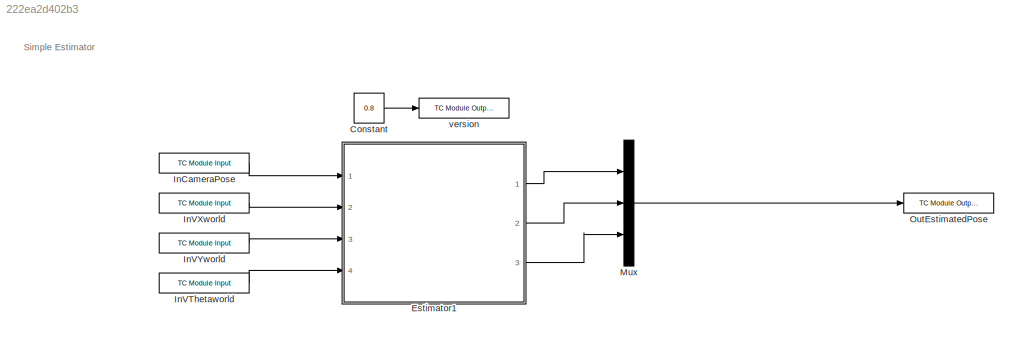
MODEL slx_222ea2d402b3
KIND model
CONFIG AbsTol = auto
CONFIG EnableMultiTasking = off
CONFIG FixedStep = 0.01
CONFIG MaxStep = auto
CONFIG MinStep = auto
CONFIG RelTol = 1e-3
CONFIG SampleTimeConstraint = Unconstrained
CONFIG SolverName = ode1
CONFIG StartTime = 0.0
CONFIG StopTime = inf
BLOCK [Constant] Constant
  Value = 0.8
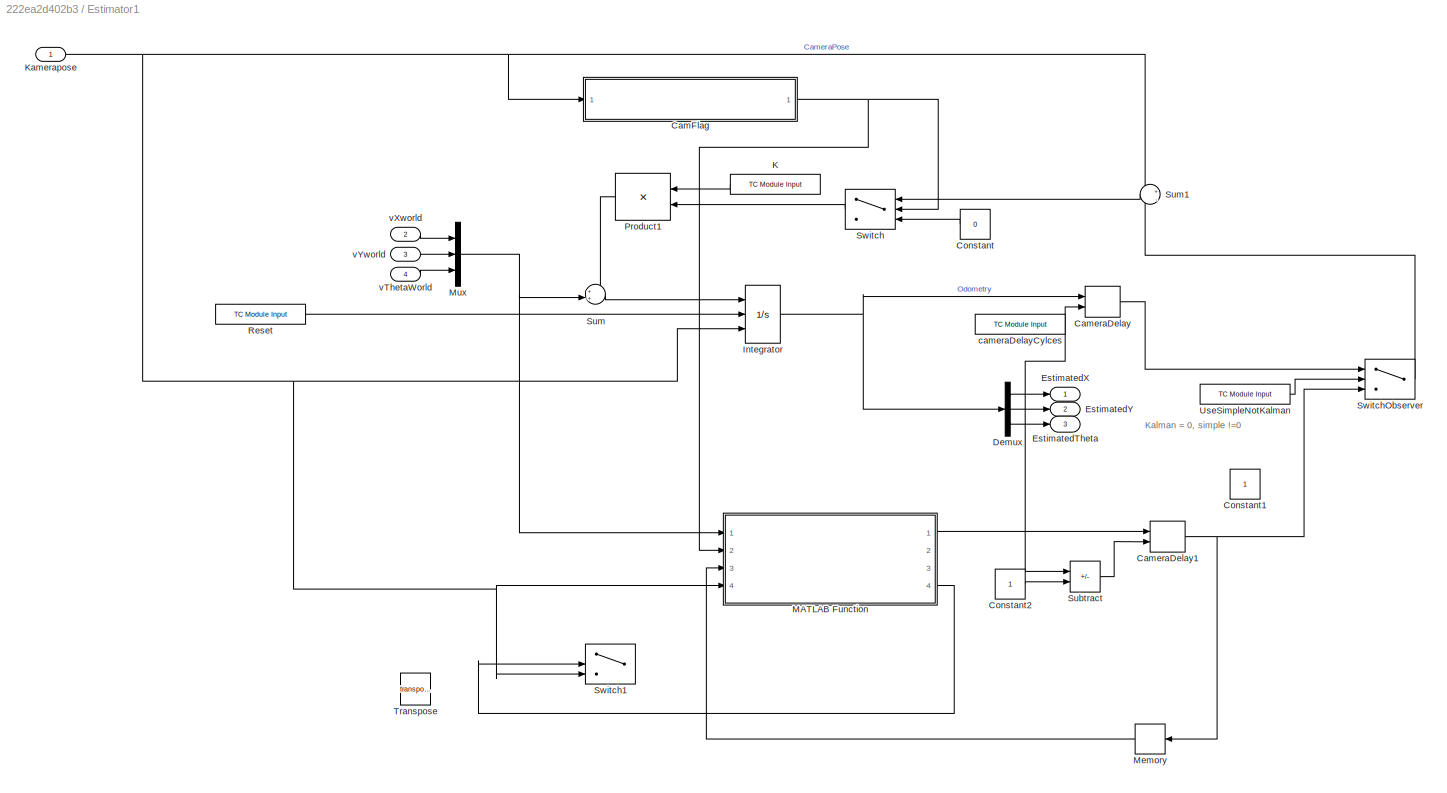
BLOCK [SubSystem] Estimator1
  Ports = [4, 3]
  RequestExecContextInheritance = off
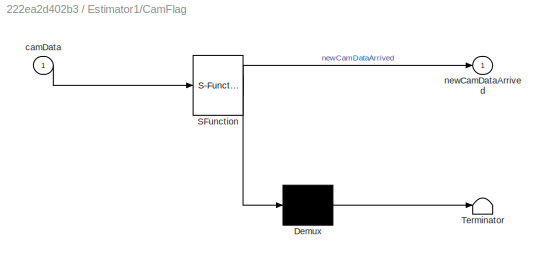
BLOCK [SubSystem] Estimator1/CamFlag
  ErrorFcn = Stateflow.Translate.translate
  NameLocation = top
  PermitHierarchicalResolution = ExplicitOnly
  Ports = [1, 1]
  RequestExecContextInheritance = off
  SFBlockType = MATLAB Function
  SystemSampleTime = 0.01
  TreatAsAtomicUnit = on
BLOCK [Demux] Estimator1/CamFlag/ Demux 
  Outputs = 1
  Ports = [1, 1]
BLOCK [S-Function] Estimator1/CamFlag/ SFunction 
  EnableBusSupport = on
  FunctionName = sf_sfun
  PortCounts = [1 2]
  Ports = [1, 2]
  SFcnIsStateOwnerBlock = off
  SFunctionDeploymentMode = off
  Tag = Stateflow S-Function 4
BLOCK [Terminator] Estimator1/CamFlag/ Terminator 
BLOCK [Inport] Estimator1/CamFlag/camData
BLOCK [Outport] Estimator1/CamFlag/newCamDataArrived
BLOCK [Delay] Estimator1/CameraDelay
  DelayLength = 14
  DelayLengthSource = Input port
  InputPortMap = u0,p1
  Ports = [2, 1]
BLOCK [Delay] Estimator1/CameraDelay1
  DelayLength = 14
  DelayLengthSource = Input port
  InputPortMap = u0,p1
  Ports = [2, 1]
BLOCK [Constant] Estimator1/Constant
  NameLocation = top
  Value = 0
BLOCK [Constant] Estimator1/Constant1
BLOCK [Constant] Estimator1/Constant2
BLOCK [Demux] Estimator1/Demux
  Outputs = 3
  Ports = [1, 3]
BLOCK [Outport] Estimator1/EstimatedTheta
  NameLocation = right
  Port = 3
BLOCK [Outport] Estimator1/EstimatedX
  NameLocation = right
BLOCK [Outport] Estimator1/EstimatedY
  NameLocation = right
  Port = 2
BLOCK [Integrator] Estimator1/Integrator
  ExternalReset = rising
  InitialConditionSource = external
  Ports = [3, 1]
BLOCK [Reference] Estimator1/K  REF=TcTargetLib/TC Module Input
  NameLocation = right
  Ports = [0, 1]
  SourceBlock = TcTargetLib/TC Module Input
  SourceProductName = Beckhoff TwinCAT Target
  SourceType = TC Module Input
BLOCK [Inport] Estimator1/Kamerapose
  PortDimensions = 3
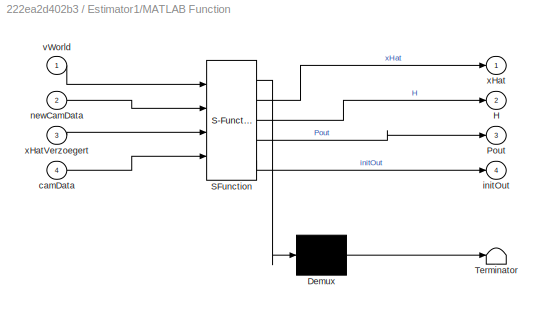
BLOCK [SubSystem] Estimator1/MATLAB Function
  ErrorFcn = Stateflow.Translate.translate
  PermitHierarchicalResolution = ExplicitOnly
  Ports = [4, 4]
  RequestExecContextInheritance = off
  SFBlockType = MATLAB Function
  TreatAsAtomicUnit = on
BLOCK [Demux] Estimator1/MATLAB Function/ Demux 
  Outputs = 1
  Ports = [1, 1]
BLOCK [S-Function] Estimator1/MATLAB Function/ SFunction 
  EnableBusSupport = on
  FunctionName = sf_sfun
  PortCounts = [4 5]
  Ports = [4, 5]
  SFcnIsStateOwnerBlock = off
  SFunctionDeploymentMode = off
  Tag = Stateflow S-Function 2
BLOCK [Terminator] Estimator1/MATLAB Function/ Terminator 
BLOCK [Outport] Estimator1/MATLAB Function/H
  Port = 2
BLOCK [Outport] Estimator1/MATLAB Function/Pout
  Port = 3
BLOCK [Inport] Estimator1/MATLAB Function/camData
  Port = 4
BLOCK [Outport] Estimator1/MATLAB Function/initOut
  Port = 4
BLOCK [Inport] Estimator1/MATLAB Function/newCamData
  Port = 2
BLOCK [Inport] Estimator1/MATLAB Function/vWorld
BLOCK [Outport] Estimator1/MATLAB Function/xHat
BLOCK [Inport] Estimator1/MATLAB Function/xHatVerzoegert
  Port = 3
BLOCK [Memory] Estimator1/Memory
BLOCK [Mux] Estimator1/Mux
  DisplayOption = bar
  Inputs = 3
  Ports = [3, 1]
BLOCK [Product] Estimator1/Product1
  Multiplication = Matrix(*)
  NameLocation = top
  Ports = [2, 1]
BLOCK [Reference] Estimator1/Reset  REF=TcTargetLib/TC Module Input
  NameLocation = left
  Ports = [0, 1]
  SourceBlock = TcTargetLib/TC Module Input
  SourceProductName = Beckhoff TwinCAT Target
  SourceType = TC Module Input
BLOCK [Sum] Estimator1/Subtract
  IconShape = rectangular
  Inputs = +-
  Ports = [2, 1]
BLOCK [Sum] Estimator1/Sum
  Inputs = ++|
  Ports = [2, 1]
BLOCK [Sum] Estimator1/Sum1
  Inputs = +|-
  NameLocation = top
  Ports = [2, 1]
BLOCK [Switch] Estimator1/Switch
  Criteria = u2 ~= 0
  InputSameDT = off
  NameLocation = top
  SaturateOnIntegerOverflow = off
  Threshold = 0.5
BLOCK [Switch] Estimator1/Switch1
  Criteria = u2 > Threshold
  InputSameDT = off
  SaturateOnIntegerOverflow = off
BLOCK [Switch] Estimator1/SwitchObserver
  Criteria = u2 ~= 0
  InputSameDT = off
  SaturateOnIntegerOverflow = off
BLOCK [Math] Estimator1/Transpose
  Operator = transpose
  Ports = [1, 1]
BLOCK [Reference] Estimator1/UseSimpleNotKalman  REF=TcTargetLib/TC Module Input
  Ports = [0, 1]
  SourceBlock = TcTargetLib/TC Module Input
  SourceProductName = Beckhoff TwinCAT Target
  SourceType = TC Module Input
BLOCK [Reference] Estimator1/cameraDelayCylces  REF=TcTargetLib/TC Module Input
  NameLocation = left
  Ports = [0, 1]
  SourceBlock = TcTargetLib/TC Module Input
  SourceProductName = Beckhoff TwinCAT Target
  SourceType = TC Module Input
BLOCK [Inport] Estimator1/vThetaWorld
  NameLocation = left
  Port = 4
BLOCK [Inport] Estimator1/vXworld
  NameLocation = left
  Port = 2
BLOCK [Inport] Estimator1/vYworld
  NameLocation = left
  Port = 3
BLOCK [Reference] InCameraPose  REF=TcTargetLib/TC Module Input
  NameLocation = left
  Ports = [0, 1]
  SourceBlock = TcTargetLib/TC Module Input
  SourceProductName = Beckhoff TwinCAT Target
  SourceType = TC Module Input
BLOCK [Reference] InVThetaworld  REF=TcTargetLib/TC Module Input
  NameLocation = left
  Ports = [0, 1]
  SourceBlock = TcTargetLib/TC Module Input
  SourceProductName = Beckhoff TwinCAT Target
  SourceType = TC Module Input
BLOCK [Reference] InVXworld  REF=TcTargetLib/TC Module Input
  NameLocation = left
  Ports = [0, 1]
  SourceBlock = TcTargetLib/TC Module Input
  SourceProductName = Beckhoff TwinCAT Target
  SourceType = TC Module Input
BLOCK [Reference] InVYworld  REF=TcTargetLib/TC Module Input
  NameLocation = left
  Ports = [0, 1]
  SourceBlock = TcTargetLib/TC Module Input
  SourceProductName = Beckhoff TwinCAT Target
  SourceType = TC Module Input
BLOCK [Mux] Mux
  DisplayOption = bar
  Inputs = 3
  Ports = [3, 1]
BLOCK [Reference] OutEstimatedPose  REF=TcTargetLib/TC Module Output
  Ports = [1]
  SourceBlock = TcTargetLib/TC Module Output
  SourceProductName = Beckhoff TwinCAT Target
  SourceType = TC Module Output
BLOCK [Reference] version  REF=TcTargetLib/TC Module Output
  Ports = [1]
  SourceBlock = TcTargetLib/TC Module Output
  SourceProductName = Beckhoff TwinCAT Target
  SourceType = TC Module Output
ANNOTATION (root): Simple Estimator
ANNOTATION Estimator1: Kalman = 0, simple !=0
LINE Constant:1 -> version:1
NET Estimator1/CamFlag:1 -> Estimator1/MATLAB Function:2, Estimator1/Switch:2
NET Estimator1/CameraDelay1:1 -> Estimator1/Memory:1, Estimator1/SwitchObserver:3
LINE Estimator1/CameraDelay:1 -> Estimator1/SwitchObserver:1
LINE Estimator1/Constant2:1 -> Estimator1/Subtract:2
LINE Estimator1/Constant:1 -> Estimator1/Switch:3
LINE Estimator1/Demux:1 -> Estimator1/EstimatedX:1
LINE Estimator1/Demux:2 -> Estimator1/EstimatedY:1
LINE Estimator1/Demux:3 -> Estimator1/EstimatedTheta:1
NET Estimator1/Integrator:1 -> Estimator1/CameraDelay:1, Estimator1/Demux:1
LINE Estimator1/K:1 -> Estimator1/Product1:1
NET Estimator1/Kamerapose:1 -> Estimator1/CamFlag:1, Estimator1/Integrator:3, Estimator1/MATLAB Function:4, Estimator1/Sum1:1, Estimator1/Switch1:3
LINE Estimator1/MATLAB Function:1 -> Estimator1/CameraDelay1:1
LINE Estimator1/MATLAB Function:4 -> Estimator1/Switch1:2
LINE Estimator1/Memory:1 -> Estimator1/MATLAB Function:3
NET Estimator1/Mux:1 -> Estimator1/MATLAB Function:1, Estimator1/Sum:2
LINE Estimator1/Product1:1 -> Estimator1/Sum:1
LINE Estimator1/Reset:1 -> Estimator1/Integrator:2
LINE Estimator1/Subtract:1 -> Estimator1/CameraDelay1:2
LINE Estimator1/Sum1:1 -> Estimator1/Switch:1
LINE Estimator1/Sum:1 -> Estimator1/Integrator:1
LINE Estimator1/Switch:1 -> Estimator1/Product1:2
LINE Estimator1/SwitchObserver:1 -> Estimator1/Sum1:2
LINE Estimator1/UseSimpleNotKalman:1 -> Estimator1/SwitchObserver:2
NET Estimator1/cameraDelayCylces:1 -> Estimator1/CameraDelay:2, Estimator1/Subtract:1
LINE Estimator1/vThetaWorld:1 -> Estimator1/Mux:3
LINE Estimator1/vXworld:1 -> Estimator1/Mux:1
LINE Estimator1/vYworld:1 -> Estimator1/Mux:2
LINE Estimator1:1 -> Mux:1
LINE Estimator1:2 -> Mux:2
LINE Estimator1:3 -> Mux:3
LINE InCameraPose:1 -> Estimator1:1
LINE InVThetaworld:1 -> Estimator1:4
LINE InVXworld:1 -> Estimator1:2
LINE InVYworld:1 -> Estimator1:3
LINE Mux:1 -> OutEstimatedPose:1
note: NET lines group one-source signal fan-out (src -> all destinations, sorted); 1:1 wires keep LINE
CHART Estimator1/MATLAB Function states=1 transitions=1
  STATE_LABEL 'eML_blk_kernel()'
  STATE_LABEL 'SCRIPT:\nfunction [xHat, H, Pout, initOut]= Kalman(vWorld, newCamData, xHatVerzoegert, camData)\n\npersistent xHatOld;\npersistent P;\npersistent init;\n\nif isempty(xHatOld)\n    xHatOld = [0; 0; 0];\n    xHat = xHatOld;\nend\n\nif isempty(P)\n    P = zeros(3,3);\nend\nif isempty(init)\n    init = 1;\n    \nelse\n    init = 0;\nend\n\n\n  %  xHatVerzoegert = zeros(3,1);\n\ninitOut = 1;\ncamDataAdj =[0; 0; 0];\n%% Systempar...<+1349ch>'
CHART Estimator1/CamFlag states=1 transitions=1
  STATE_LABEL 'eML_blk_kernel()'
  STATE_LABEL "SCRIPT:\nfunction newCamDataArrived = fcn(camData)\n\npersistent oldCamData\n\nif isempty(oldCamData)\n    oldCamData = [0 0 0]';\nend\n\nif all(camData(1:2)) && all(camData ~= oldCamData)\n    newCamDataArrived = true;\nelse\n    newCamDataArrived = false;\n    oldCamData = camData;\nend\n"
CHART  states=0 transitions=0
CHART  states=0 transitions=0
